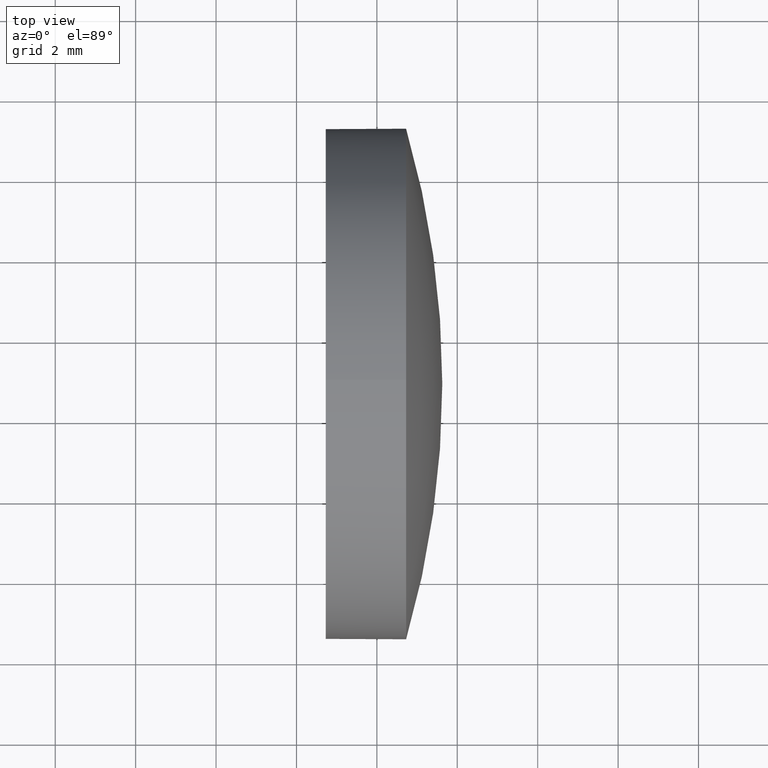
[diagram: clean part render]
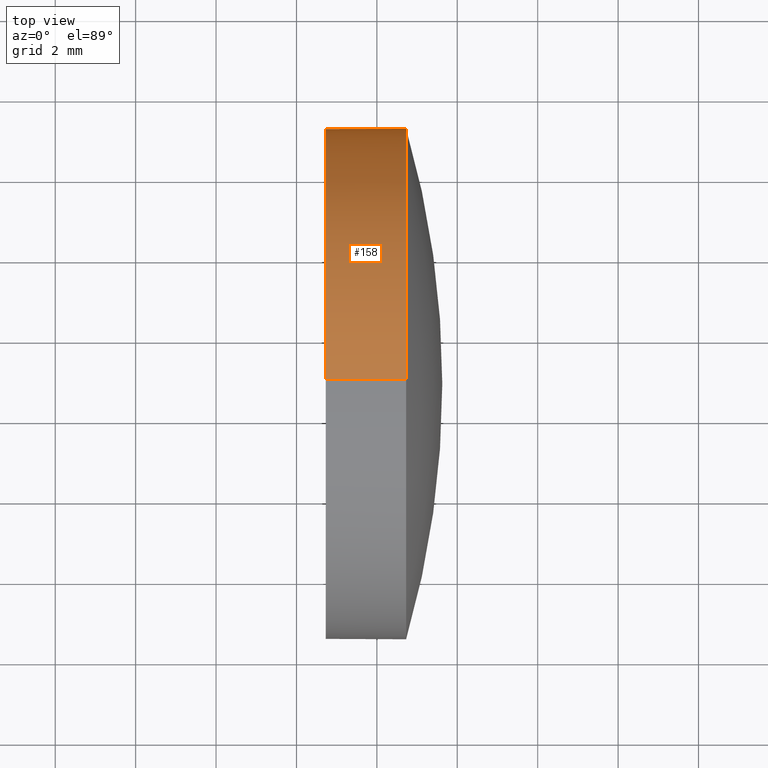
[diagram: same view with one face highlighted and labeled with its STEP entity id]
A machine part, top view. The second image highlights one B-rep face of the part: STEP entity #158.
In plain terms, the highlighted cylindrical surface (partial cylindrical patch) has radius 6.35 mm, axis along (-1, -0, -0).
Its self-contained STEP definition (entity closure, byte-faithful):
#2 = ORIENTED_EDGE ( 'NONE', *, *, #157, .T. ) ;
#5 = ORIENTED_EDGE ( 'NONE', *, *, #147, .T. ) ;
#7 = VERTEX_POINT ( 'NONE', #55 ) ;
#8 = AXIS2_PLACEMENT_3D ( 'NONE', #64, #76, #29 ) ;
#18 = DIRECTION ( 'NONE',  ( -1.000000000000000000, -0.0000000000000000000, -0.0000000000000000000 ) ) ;
#19 = DIRECTION ( 'NONE',  ( -1.000000000000000000, -0.0000000000000000000, -0.0000000000000000000 ) ) ;
#26 = CIRCLE ( 'NONE', #177, 6.349999999999999600 ) ;
#27 = CARTESIAN_POINT ( 'NONE',  ( 442.7273123846861700, -5.129459319946108500, 6.349999999999999600 ) ) ;
#29 = DIRECTION ( 'NONE',  ( 0.0000000000000000000, 0.0000000000000000000, 1.000000000000000000 ) ) ;
#31 = ORIENTED_EDGE ( 'NONE', *, *, #35, .T. ) ;
#35 = EDGE_CURVE ( 'NONE', #62, #168, #58, .T. ) ;
#37 = AXIS2_PLACEMENT_3D ( 'NONE', #130, #159, #87 ) ;
#41 = EDGE_CURVE ( 'NONE', #7, #168, #135, .T. ) ;
#42 = DIRECTION ( 'NONE',  ( -1.000000000000000000, -0.0000000000000000000, -0.0000000000000000000 ) ) ;
#43 = AXIS2_PLACEMENT_3D ( 'NONE', #74, #42, #85 ) ;
#45 = EDGE_LOOP ( 'NONE', ( #5, #31, #66, #155, #2 ) ) ;
#55 = CARTESIAN_POINT ( 'NONE',  ( 440.7273123846862900, -5.129459319946108500, 6.349999999999999600 ) ) ;
#58 = LINE ( 'NONE', #59, #128 ) ;
#59 = CARTESIAN_POINT ( 'NONE',  ( 438.3992838946919600, -5.129459319946107600, -6.349999999999999600 ) ) ;
#61 = CARTESIAN_POINT ( 'NONE',  ( 440.7273123846862900, -5.129459319946107600, -6.349999999999999600 ) ) ;
#62 = VERTEX_POINT ( 'NONE', #101 ) ;
#63 = EDGE_CURVE ( 'NONE', #79, #7, #143, .T. ) ;
#64 = CARTESIAN_POINT ( 'NONE',  ( 438.3992838946919600, -5.129459319946108500, 0.0000000000000000000 ) ) ;
#65 = FACE_OUTER_BOUND ( 'NONE', #45, .T. ) ;
#66 = ORIENTED_EDGE ( 'NONE', *, *, #41, .F. ) ;
#74 = CARTESIAN_POINT ( 'NONE',  ( 440.7273123846862900, -5.129459319946108500, 0.0000000000000000000 ) ) ;
#76 = DIRECTION ( 'NONE',  ( -1.000000000000000000, -0.0000000000000000000, -0.0000000000000000000 ) ) ;
#79 = VERTEX_POINT ( 'NONE', #27 ) ;
#85 = DIRECTION ( 'NONE',  ( 0.0000000000000000000, 0.0000000000000000000, 1.000000000000000000 ) ) ;
#87 = DIRECTION ( 'NONE',  ( 0.0000000000000000000, 0.0000000000000000000, 1.000000000000000000 ) ) ;
#101 = CARTESIAN_POINT ( 'NONE',  ( 442.7273123846861700, -5.129459319946107600, -6.349999999999999600 ) ) ;
#106 = VECTOR ( 'NONE', #19, 1000.000000000000000 ) ;
#120 = CYLINDRICAL_SURFACE ( 'NONE', #8, 6.349999999999999600 ) ;
#127 = VERTEX_POINT ( 'NONE', #173 ) ;
#128 = VECTOR ( 'NONE', #18, 1000.000000000000000 ) ;
#130 = CARTESIAN_POINT ( 'NONE',  ( 442.7273123846861700, -5.129459319946108500, 0.0000000000000000000 ) ) ;
#135 = CIRCLE ( 'NONE', #43, 6.349999999999999600 ) ;
#143 = LINE ( 'NONE', #154, #106 ) ;
#147 = EDGE_CURVE ( 'NONE', #127, #62, #178, .T. ) ;
#154 = CARTESIAN_POINT ( 'NONE',  ( 438.3992838946919600, -5.129459319946108500, 6.349999999999999600 ) ) ;
#155 = ORIENTED_EDGE ( 'NONE', *, *, #63, .F. ) ;
#156 = DIRECTION ( 'NONE',  ( -1.000000000000000000, -0.0000000000000000000, -0.0000000000000000000 ) ) ;
#157 = EDGE_CURVE ( 'NONE', #79, #127, #26, .T. ) ;
#158 = ADVANCED_FACE ( 'NONE', ( #65 ), #120, .T. ) ;
#159 = DIRECTION ( 'NONE',  ( -1.000000000000000000, -0.0000000000000000000, -0.0000000000000000000 ) ) ;
#160 = CARTESIAN_POINT ( 'NONE',  ( 442.7273123846861700, -5.129459319946108500, 0.0000000000000000000 ) ) ;
#168 = VERTEX_POINT ( 'NONE', #61 ) ;
#173 = CARTESIAN_POINT ( 'NONE',  ( 442.7273123846861700, 1.220540680053899800, 7.776507174585617200E-016 ) ) ;
#174 = DIRECTION ( 'NONE',  ( 0.0000000000000000000, 0.0000000000000000000, 1.000000000000000000 ) ) ;
#177 = AXIS2_PLACEMENT_3D ( 'NONE', #160, #156, #174 ) ;
#178 = CIRCLE ( 'NONE', #37, 6.349999999999999600 ) ;